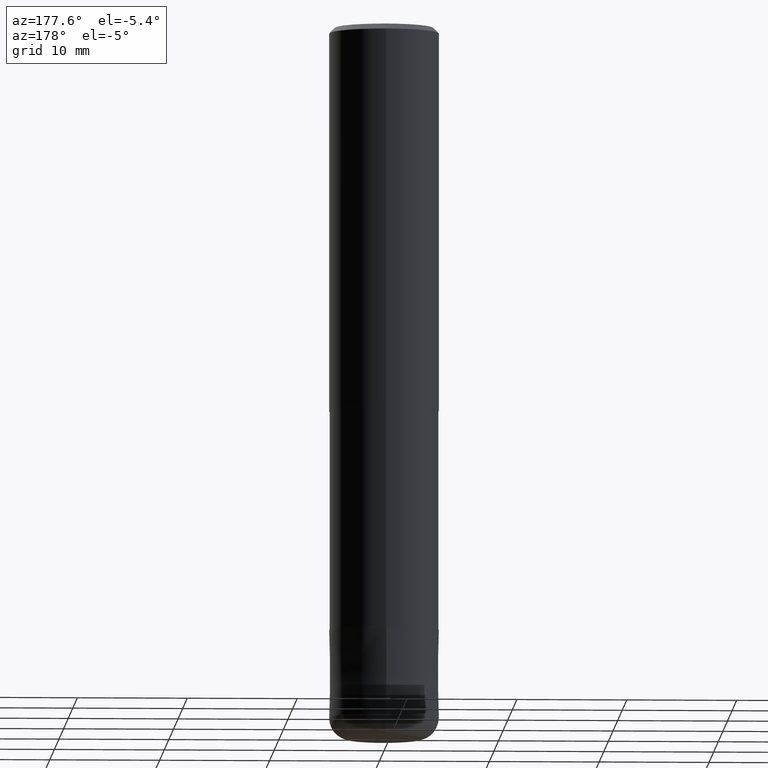
[diagram: clean part render]
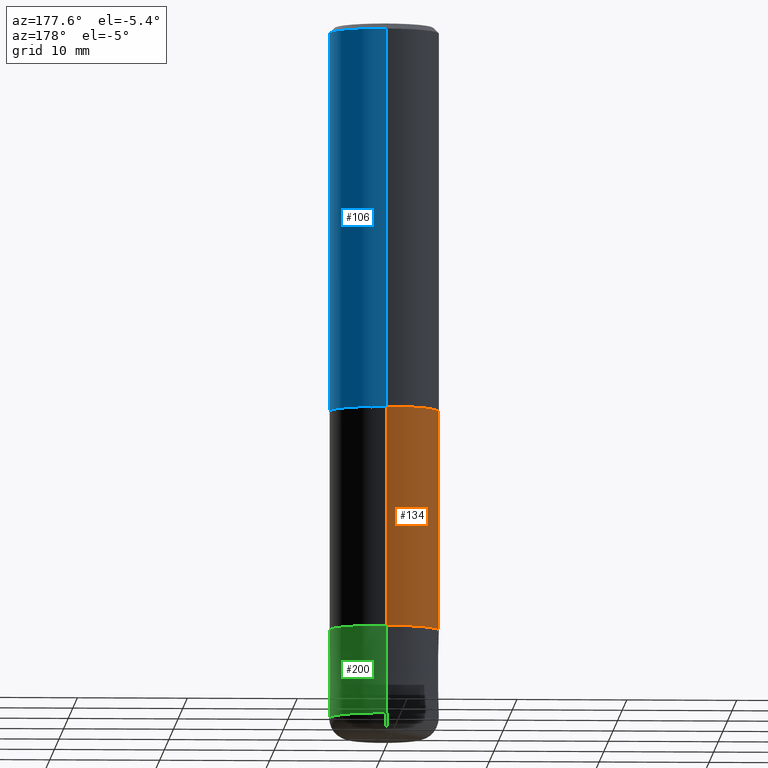
[diagram: same view with three faces highlighted in distinct colors, each labeled with its STEP entity id]
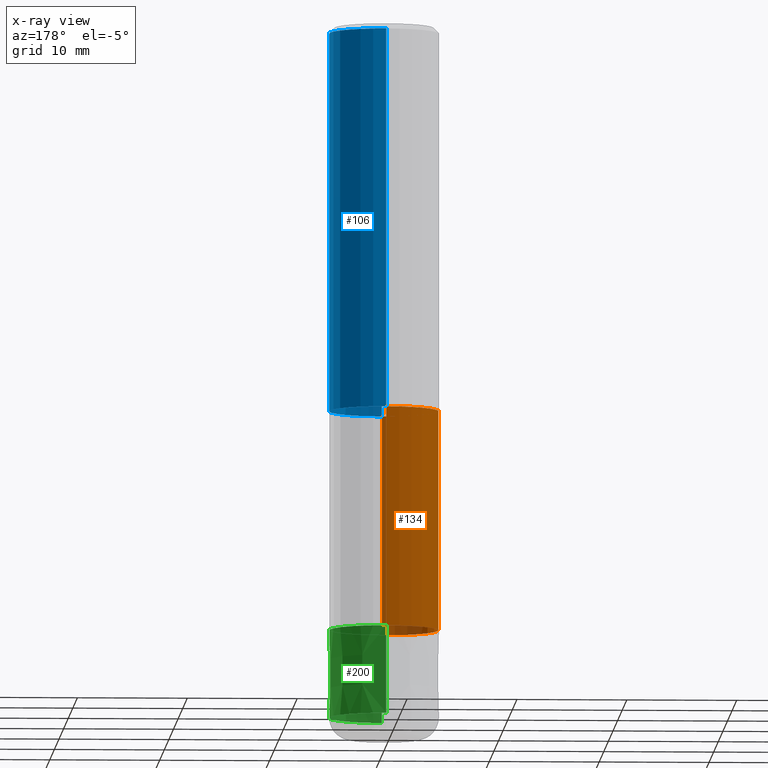
[diagram: x-ray of the same camera — body ghosted, the three highlighted faces saturated]
A machine part, auxiliary view with three faces highlighted in distinct colors.
The next image is the same camera in x-ray (body ghosted, the three faces saturated) — at least one of them is partly hidden behind the body in this view.
Their STEP definitions:

[orange] entity #134 — the highlighted cylindrical surface (partial cylindrical patch) has radius 4.96 mm, axis along (-0, -0, 1).
#92=EDGE_CURVE('',#124,#136,#229,.T.);
#122=EDGE_CURVE('',#208,#130,#265,.T.);
#124=VERTEX_POINT('',#267);
#130=VERTEX_POINT('',#274);
#134=ADVANCED_FACE('',(#278),#279,.T.);
#136=VERTEX_POINT('',#281);
#140=EDGE_CURVE('',#124,#208,#286,.T.);
#198=EDGE_CURVE('',#130,#136,#350,.T.);
#208=VERTEX_POINT('',#361);
#229=CIRCLE('',#375,4.95995);
#265=CIRCLE('',#419,4.95995);
#267=CARTESIAN_POINT('',(6.0739862846413E-016,-4.95995,-55.0));
#274=CARTESIAN_POINT('',(0.0,4.95995,-35.0));
#278=FACE_OUTER_BOUND('',#433,.T.);
#279=CYLINDRICAL_SURFACE('',#434,4.95995);
#281=CARTESIAN_POINT('',(0.0,4.95995,-55.0));
#286=LINE('',#442,#443);
#350=LINE('',#524,#525);
#361=CARTESIAN_POINT('',(6.0739862846413E-016,-4.95995,-35.0));
#375=AXIS2_PLACEMENT_3D('',#540,#541,#542);
#419=AXIS2_PLACEMENT_3D('',#603,#604,#605);
#433=EDGE_LOOP('',(#618,#619,#620,#621));
#434=AXIS2_PLACEMENT_3D('',#622,#623,#624);
#442=CARTESIAN_POINT('',(6.0739862846413E-016,-4.95995,-45.0));
#443=VECTOR('',#631,1.0);
#524=CARTESIAN_POINT('',(-6.0739862846413E-016,4.95995,-45.0));
#525=VECTOR('',#701,1.0);
#540=CARTESIAN_POINT('',(0.0,0.0,-55.0));
#541=DIRECTION('',(0.0,0.0,-1.0));
#542=DIRECTION('',(0.0,1.0,0.0));
#603=CARTESIAN_POINT('',(0.0,0.0,-35.0));
#604=DIRECTION('',(0.0,0.0,-1.0));
#605=DIRECTION('',(0.0,1.0,0.0));
#618=ORIENTED_EDGE('',*,*,#198,.T.);
#619=ORIENTED_EDGE('',*,*,#92,.F.);
#620=ORIENTED_EDGE('',*,*,#140,.T.);
#621=ORIENTED_EDGE('',*,*,#122,.T.);
#622=CARTESIAN_POINT('',(0.0,0.0,-45.0));
#623=DIRECTION('',(-0.0,-0.0,1.0));
#624=DIRECTION('',(0.0,1.0,0.0));
#631=DIRECTION('',(-0.0,-0.0,1.0));
#701=DIRECTION('',(0.0,0.0,-1.0));

[blue] entity #106 — the highlighted cylindrical surface (partial cylindrical patch) has radius 5 mm, axis along (-0, -0, 1).
#94=EDGE_CURVE('',#192,#186,#231,.T.);
#106=ADVANCED_FACE('',(#245),#246,.T.);
#150=EDGE_CURVE('',#188,#186,#296,.T.);
#162=VERTEX_POINT('',#308);
#182=EDGE_CURVE('',#192,#162,#332,.T.);
#186=VERTEX_POINT('',#337);
#188=VERTEX_POINT('',#339);
#192=VERTEX_POINT('',#343);
#202=EDGE_CURVE('',#162,#188,#355,.T.);
#231=CIRCLE('',#378,5.0);
#245=FACE_OUTER_BOUND('',#396,.T.);
#246=CYLINDRICAL_SURFACE('',#397,5.0);
#296=LINE('',#454,#455);
#308=CARTESIAN_POINT('',(0.0,5.0,-35.0));
#332=LINE('',#503,#504);
#337=CARTESIAN_POINT('',(6.12303176911189E-016,-5.0,-0.5));
#339=CARTESIAN_POINT('',(6.12303176911189E-016,-5.0,-35.0));
#343=CARTESIAN_POINT('',(0.0,5.0,-0.5));
#355=CIRCLE('',#531,5.0);
#378=AXIS2_PLACEMENT_3D('',#543,#544,#545);
#396=EDGE_LOOP('',(#566,#567,#568,#569));
#397=AXIS2_PLACEMENT_3D('',#570,#571,#572);
#454=CARTESIAN_POINT('',(6.12303176911189E-016,-5.0,-17.75));
#455=VECTOR('',#636,1.0);
#503=CARTESIAN_POINT('',(-6.12303176911189E-016,5.0,-17.75));
#504=VECTOR('',#681,1.0);
#531=AXIS2_PLACEMENT_3D('',#710,#711,#712);
#543=CARTESIAN_POINT('',(0.0,0.0,-0.5));
#544=DIRECTION('',(0.0,0.0,-1.0));
#545=DIRECTION('',(0.0,1.0,0.0));
#566=ORIENTED_EDGE('',*,*,#182,.F.);
#567=ORIENTED_EDGE('',*,*,#94,.T.);
#568=ORIENTED_EDGE('',*,*,#150,.F.);
#569=ORIENTED_EDGE('',*,*,#202,.F.);
#570=CARTESIAN_POINT('',(0.0,0.0,-17.75));
#571=DIRECTION('',(-0.0,-0.0,1.0));
#572=DIRECTION('',(0.0,1.0,0.0));
#636=DIRECTION('',(-0.0,-0.0,1.0));
#681=DIRECTION('',(0.0,0.0,-1.0));
#710=CARTESIAN_POINT('',(0.0,0.0,-35.0));
#711=DIRECTION('',(0.0,0.0,-1.0));
#712=DIRECTION('',(0.0,1.0,0.0));

[green] entity #200 — the highlighted conical surface has half-angle 0.001 deg.
#108=VERTEX_POINT('',#248);
#116=VERTEX_POINT('',#258);
#132=VERTEX_POINT('',#276);
#148=VERTEX_POINT('',#294);
#152=EDGE_CURVE('',#116,#148,#298,.T.);
#164=EDGE_CURVE('',#132,#108,#310,.T.);
#168=EDGE_CURVE('',#148,#132,#314,.T.);
#180=EDGE_CURVE('',#116,#108,#330,.T.);
#200=ADVANCED_FACE('',(#352),#353,.T.);
#248=CARTESIAN_POINT('',(6.1229093084765E-016,-4.9999,-55.0));
#258=CARTESIAN_POINT('',(0.0,4.9999,-55.0));
#276=CARTESIAN_POINT('',(6.12303176911189E-016,-5.0,-63.0));
#294=CARTESIAN_POINT('',(0.0,5.0,-63.0));
#298=LINE('',#458,#459);
#310=LINE('',#473,#474);
#314=CIRCLE('',#480,5.0);
#330=CIRCLE('',#500,4.9999);
#352=FACE_OUTER_BOUND('',#527,.T.);
#353=CONICAL_SURFACE('',#528,4.99995,1.24999999993198E-005);
#458=CARTESIAN_POINT('',(-6.1229705387942E-016,4.99995,-59.0));
#459=VECTOR('',#637,1.0);
#473=CARTESIAN_POINT('',(6.1229705387942E-016,-4.99995,-59.0));
#474=VECTOR('',#645,1.0);
#480=AXIS2_PLACEMENT_3D('',#649,#650,#651);
#500=AXIS2_PLACEMENT_3D('',#678,#679,#680);
#527=EDGE_LOOP('',(#703,#704,#705,#706));
#528=AXIS2_PLACEMENT_3D('',#707,#708,#709);
#637=DIRECTION('',(-1.53075794215481E-021,1.24999999989943E-005,-0.999999999921875));
#645=DIRECTION('',(-1.53075794215481E-021,1.24999999989943E-005,0.999999999921875));
#649=CARTESIAN_POINT('',(0.0,0.0,-63.0));
#650=DIRECTION('',(0.0,0.0,-1.0));
#651=DIRECTION('',(0.0,1.0,0.0));
#678=CARTESIAN_POINT('',(0.0,0.0,-55.0));
#679=DIRECTION('',(0.0,0.0,-1.0));
#680=DIRECTION('',(0.0,1.0,0.0));
#703=ORIENTED_EDGE('',*,*,#152,.F.);
#704=ORIENTED_EDGE('',*,*,#180,.T.);
#705=ORIENTED_EDGE('',*,*,#164,.F.);
#706=ORIENTED_EDGE('',*,*,#168,.F.);
#707=CARTESIAN_POINT('',(0.0,0.0,-59.0));
#708=DIRECTION('',(0.0,-0.0,-1.0));
#709=DIRECTION('',(0.0,1.0,0.0));